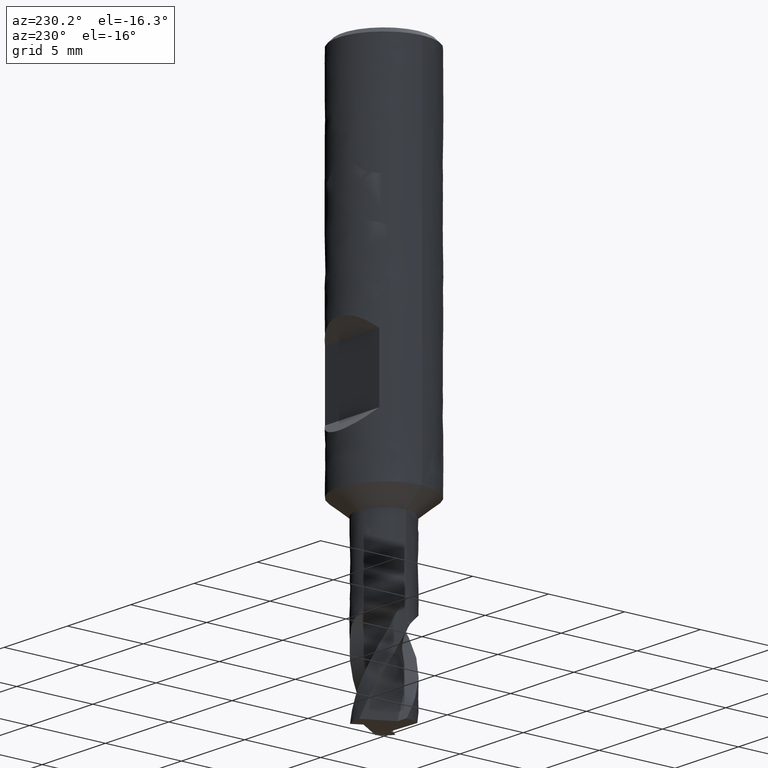
[diagram: clean part render]
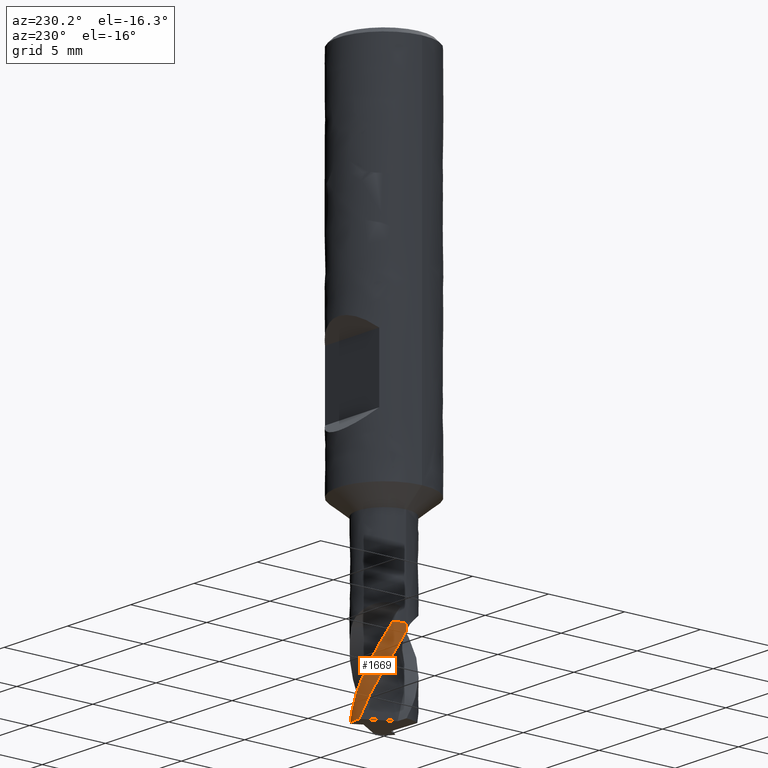
[diagram: same view with one face highlighted and labeled with its STEP entity id]
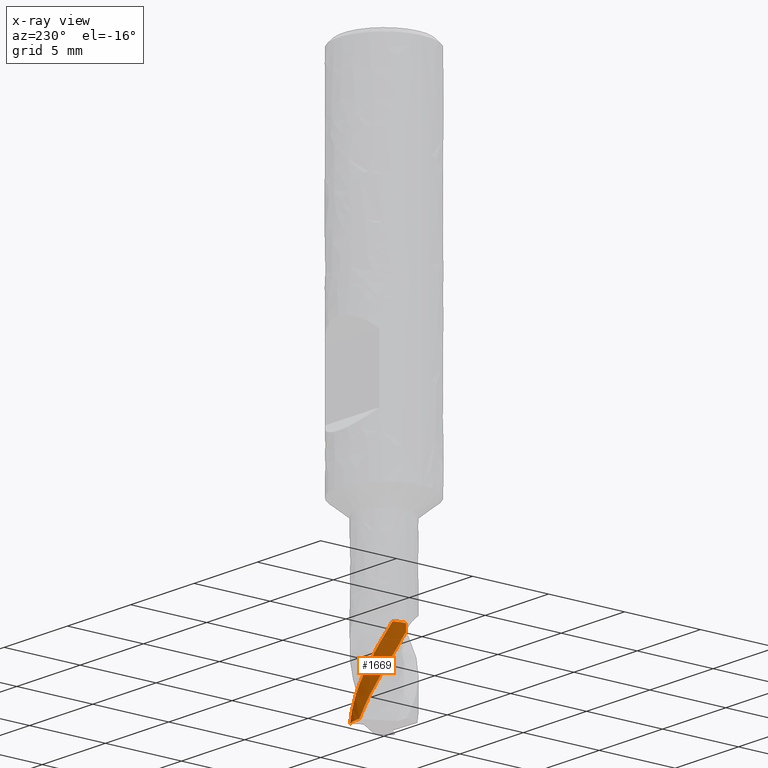
[diagram: x-ray of the same camera — body ghosted, the highlighted face saturated]
A machine part, auxiliary view. The second image highlights one B-rep face of the part: STEP entity #1669.
The next image is the same camera in x-ray: the body ghosted, the highlighted face saturated — about 0% of this face is hidden behind the body in this view.
In plain terms, the highlighted face is a freeform B-spline surface patch.
Its self-contained STEP definition (entity closure, byte-faithful):
#1185 = VERTEX_POINT('', #1186);
#1186 = CARTESIAN_POINT('', (-1.57972499609625, 0.752973397079018, -31.));
#1192 = EDGE_CURVE('', #1193, #1185, #1195, .T.);
#1193 = VERTEX_POINT('', #1194);
#1194 = CARTESIAN_POINT('', (-1.75, 2.00535913360379E-15, -31.));
#1195 = CIRCLE('', #1196, 1.75);
#1196 = AXIS2_PLACEMENT_3D('', #1197, #1198, #1199);
#1197 = CARTESIAN_POINT('', (1.16231383156294E-31, 1.8982025386784E-15, -31.));
#1198 = DIRECTION('', (3.74939945665464E-33, 6.12323399573677E-17, -1.));
#1199 = DIRECTION('', (-1., 6.12323399573677E-17, 0.));
#1504 = VERTEX_POINT('', #1505);
#1505 = CARTESIAN_POINT('', (-1.75, 2.03132023899144E-15, -31.4239770259593));
#1533 = EDGE_CURVE('', #1534, #1504, #1536, .T.);
#1534 = VERTEX_POINT('', #1535);
#1535 = CARTESIAN_POINT('', (-0.13579938749371, 1.74472305147732, -36.));
#1536 = B_SPLINE_CURVE_WITH_KNOTS('', 3, (#1537, #1538, #1539, #1540, #1541, #1542, #1543, #1544, #1545, #1546, #1547, #1548, #1549, #1550, #1551, #1552, #1553, #1554, #1555, #1556, #1557, #1558, #1559, #1560, #1561, #1562, #1563, #1564, #1565, #1566, #1567, #1568, #1569, #1570, #1571, #1572, #1573, #1574, #1575, #1576, #1577, #1578, #1579, #1580, #1581, #1582, #1583, #1584, #1585, #1586, #1587, #1588, #1589, #1590, #1591, #1592, #1593, #1594), .UNSPECIFIED., .F., .U., (4, 3, 3, 3, 3, 3, 3, 3, 3, 3, 3, 3, 3, 3, 3, 3, 3, 3, 3, 4), (0., 0.444485917132373, 0.888742850339028, 1.33277559174829, 1.77658916909205, 2.22018659387222, 2.66356901522196, 3.10673755910325, 3.4021459382814, 3.84495677835667, 4.14018737503664, 4.27147412596438, 4.46835553625788, 4.59964403143588, 4.7309075642457, 4.86214859993675, 4.94967602204588, 5.00804364735204, 5.13931018926137, 5.26894643645169), .UNSPECIFIED.);
#1537 = CARTESIAN_POINT('', (-0.135799387493712, 1.74472305147732, -36.));
#1538 = CARTESIAN_POINT('', (-0.208182108121247, 1.73908918934773, -35.870845164973));
#1539 = CARTESIAN_POINT('', (-0.280325774037532, 1.72893425050256, -35.7416739572751));
#1540 = CARTESIAN_POINT('', (-0.351616540846928, 1.71431205099971, -35.6126166525295));
#1541 = CARTESIAN_POINT('', (-0.422870581094194, 1.69969738435341, -35.4836258336884));
#1542 = CARTESIAN_POINT('', (-0.493334391653768, 1.68060634149178, -35.354625351265));
#1543 = CARTESIAN_POINT('', (-0.562381102560269, 1.65717455190565, -35.2257344631937));
#1544 = CARTESIAN_POINT('', (-0.631392969427059, 1.63375458704218, -35.0969086191942));
#1545 = CARTESIAN_POINT('', (-0.699055259304116, 1.60597587599406, -34.9680711737583));
#1546 = CARTESIAN_POINT('', (-0.764763525052212, 1.57405106357765, -34.8393448719805));
#1547 = CARTESIAN_POINT('', (-0.830439358753491, 1.54214200849403, -34.7106821064626));
#1548 = CARTESIAN_POINT('', (-0.8942241778632, 1.50606112831375, -34.5820069558558));
#1549 = CARTESIAN_POINT('', (-0.95554183034097, 1.46609679437228, -34.4534433231029));
#1550 = CARTESIAN_POINT('', (-1.01682961900102, 1.42615192444379, -34.3249423052861));
#1551 = CARTESIAN_POINT('', (-1.07570973295833, 1.38229005204606, -34.1964280981125));
#1552 = CARTESIAN_POINT('', (-1.13164428073795, 1.33487123793761, -34.0680260744305));
#1553 = CARTESIAN_POINT('', (-1.18755171808145, 1.28747540684739, -33.9396862848238));
#1554 = CARTESIAN_POINT('', (-1.24056950166134, 1.23648065638393, -33.8113335976206));
#1555 = CARTESIAN_POINT('', (-1.29020318995757, 1.1823179473489, -33.683091615854));
#1556 = CARTESIAN_POINT('', (-1.33981293610568, 1.12818136515728, -33.5549114950658));
#1557 = CARTESIAN_POINT('', (-1.38609171719219, 1.07082578677026, -33.4267177773291));
#1558 = CARTESIAN_POINT('', (-1.42860492804149, 1.01073634523331, -33.2986399661025));
#1559 = CARTESIAN_POINT('', (-1.45694348880815, 0.970681777337561, -33.2132655433337));
#1560 = CARTESIAN_POINT('', (-1.48362432496311, 0.929393761390241, -33.1278945096896));
#1561 = CARTESIAN_POINT('', (-1.50852813059148, 0.887041644577182, -33.0425579221939));
#1562 = CARTESIAN_POINT('', (-1.54585840240723, 0.823556727605189, -32.9146402033286));
#1563 = CARTESIAN_POINT('', (-1.57922772355106, 0.757627127784379, -32.7866943574195));
#1564 = CARTESIAN_POINT('', (-1.6083479937175, 0.689722212999941, -32.6589142373303));
#1565 = CARTESIAN_POINT('', (-1.62776304402489, 0.6444486860332, -32.5737207468291));
#1566 = CARTESIAN_POINT('', (-1.64528744808434, 0.598292637279147, -32.4885400582087));
#1567 = CARTESIAN_POINT('', (-1.66080768069556, 0.551559468908565, -32.4033361815365));
#1568 = CARTESIAN_POINT('', (-1.66770940746807, 0.530777592284227, -32.36544668004));
#1569 = CARTESIAN_POINT('', (-1.67421487365111, 0.509885483204432, -32.3275432413459));
#1570 = CARTESIAN_POINT('', (-1.6803267069812, 0.488878469361981, -32.2896422464394));
#1571 = CARTESIAN_POINT('', (-1.68949218908052, 0.457375743594677, -32.2328048178644));
#1572 = CARTESIAN_POINT('', (-1.69777993894808, 0.425594286920368, -32.1759725175508));
#1573 = CARTESIAN_POINT('', (-1.70519350202135, 0.393465526652838, -32.1192300913942));
#1574 = CARTESIAN_POINT('', (-1.7101371660186, 0.372040768565364, -32.0813919444013));
#1575 = CARTESIAN_POINT('', (-1.71469216239242, 0.350458284122381, -32.0435898582454));
#1576 = CARTESIAN_POINT('', (-1.71885100610759, 0.328711452193159, -32.0058411528282));
#1577 = CARTESIAN_POINT('', (-1.72300905908638, 0.306968755069694, -31.9680996247123));
#1578 = CARTESIAN_POINT('', (-1.72676638636305, 0.285075718659257, -31.9303982533948));
#1579 = CARTESIAN_POINT('', (-1.73009651686208, 0.263184426480179, -31.8926604900152));
#1580 = CARTESIAN_POINT('', (-1.73342607661354, 0.241296886226631, -31.8549291944712));
#1581 = CARTESIAN_POINT('', (-1.73632924161598, 0.219408903979693, -31.8171578103492));
#1582 = CARTESIAN_POINT('', (-1.73880243124873, 0.197651473770168, -31.779285675294));
#1583 = CARTESIAN_POINT('', (-1.74045185371634, 0.183140983450342, -31.7540279475285));
#1584 = CARTESIAN_POINT('', (-1.74191059463836, 0.16868729412633, -31.7287242187666));
#1585 = CARTESIAN_POINT('', (-1.74318218265357, 0.154323938775353, -31.7033607642966));
#1586 = CARTESIAN_POINT('', (-1.74403014059666, 0.144745741188087, -31.6864471551521));
#1587 = CARTESIAN_POINT('', (-1.74479481712819, 0.135209737175101, -31.6695052147357));
#1588 = CARTESIAN_POINT('', (-1.74547869090737, 0.125714516219514, -31.652537475592));
#1589 = CARTESIAN_POINT('', (-1.74701669670467, 0.104360129897186, -31.6143776835889));
#1590 = CARTESIAN_POINT('', (-1.74814817049194, 0.0831981967207093, -31.5760917435938));
#1591 = CARTESIAN_POINT('', (-1.74889636568206, 0.0621409857026753, -31.5377436136412));
#1592 = CARTESIAN_POINT('', (-1.74963526849157, 0.0413452995135909, -31.4998717570241));
#1593 = CARTESIAN_POINT('', (-1.75, 0.0206494313834184, -31.4619360176294));
#1594 = CARTESIAN_POINT('', (-1.75, 1.88386874353342E-15, -31.4239770259593));
#1644 = EDGE_CURVE('', #1193, #1504, #1645, .T.);
#1645 = LINE('', #1646, #1647);
#1646 = CARTESIAN_POINT('', (-1.75, 2.00535913360379E-15, -31.));
#1647 = VECTOR('', #1648, 0.423977025959303);
#1648 = DIRECTION('', (0., 2.59611053876537E-17, -0.423977025959303));
#1669 = ADVANCED_FACE('', (#1670), #1769, .T.);
#1670 = FACE_OUTER_BOUND('', #1671, .T.);
#1671 = EDGE_LOOP('', (#1672, #1673, #1760, #1767, #1768));
#1672 = ORIENTED_EDGE('', *, *, #1192, .T.);
#1673 = ORIENTED_EDGE('', *, *, #1674, .T.);
#1674 = EDGE_CURVE('', #1185, #1675, #1677, .T.);
#1675 = VERTEX_POINT('', #1676);
#1676 = CARTESIAN_POINT('', (0.850131221781623, 1.52963293170358, -36.));
#1677 = B_SPLINE_CURVE_WITH_KNOTS('', 3, (#1678, #1679, #1680, #1681, #1682, #1683, #1684, #1685, #1686, #1687, #1688, #1689, #1690, #1691, #1692, #1693, #1694, #1695, #1696, #1697, #1698, #1699, #1700, #1701, #1702, #1703, #1704, #1705, #1706, #1707, #1708, #1709, #1710, #1711, #1712, #1713, #1714, #1715, #1716, #1717, #1718, #1719, #1720, #1721, #1722, #1723, #1724, #1725, #1726, #1727, #1728, #1729, #1730, #1731, #1732, #1733, #1734, #1735, #1736, #1737, #1738, #1739, #1740, #1741, #1742, #1743, #1744, #1745, #1746, #1747, #1748, #1749, #1750, #1751, #1752, #1753, #1754, #1755, #1756, #1757, #1758, #1759), .UNSPECIFIED., .F., .U., (4, 3, 3, 3, 3, 3, 3, 3, 3, 3, 3, 3, 3, 3, 3, 3, 3, 3, 3, 3, 3, 3, 3, 3, 3, 3, 3, 4), (0.957480969290657, 0.963963397430548, 1.05161242662027, 1.13919979259767, 1.2267637772259, 1.31434476345777, 1.35327707089247, 1.48476738828531, 1.61617674605806, 1.74753513611114, 1.87889286186834, 2.01027622215156, 2.14165643430717, 2.33869059407002, 2.53570585460473, 2.83118031009267, 3.02815437802402, 3.32350404478822, 3.76618896974301, 4.20865285611173, 4.65089683054764, 4.84769087697172, 4.90605265892595, 4.94496991299914, 5.38964549570717, 5.83406470055957, 6.27824047919384, 6.71619265526527), .UNSPECIFIED.);
#1678 = CARTESIAN_POINT('', (-1.57972499609625, 0.752973397079018, -31.));
#1679 = CARTESIAN_POINT('', (-1.57925982436353, 0.753949319225145, -31.00187090577));
#1680 = CARTESIAN_POINT('', (-1.57879367294765, 0.754924968322724, -31.0037417210958));
#1681 = CARTESIAN_POINT('', (-1.57832654764479, 0.755900330069835, -31.0056124323483));
#1682 = CARTESIAN_POINT('', (-1.57201053789937, 0.769088214053776, -31.0309063533356));
#1683 = CARTESIAN_POINT('', (-1.56551577174933, 0.782223771283178, -31.0561835787707));
#1684 = CARTESIAN_POINT('', (-1.55887338470358, 0.795244472135965, -31.0814805103163));
#1685 = CARTESIAN_POINT('', (-1.5522356707378, 0.808256012610724, -31.1067596448587));
#1686 = CARTESIAN_POINT('', (-1.54545072821713, 0.821153205675411, -31.1320597144637));
#1687 = CARTESIAN_POINT('', (-1.53853641679145, 0.833909883744358, -31.1573945430122));
#1688 = CARTESIAN_POINT('', (-1.53162395113346, 0.846663156432391, -31.1827226084567));
#1689 = CARTESIAN_POINT('', (-1.52458225514437, 0.85927658528139, -31.2080864967784));
#1690 = CARTESIAN_POINT('', (-1.51740989861998, 0.871760976168419, -31.2334761862399));
#1691 = CARTESIAN_POINT('', (-1.51023614949607, 0.884247791050502, -31.2588708054159));
#1692 = CARTESIAN_POINT('', (-1.50293164436643, 0.8966062815277, -31.2842921764109));
#1693 = CARTESIAN_POINT('', (-1.49547104956114, 0.908881917481313, -31.3097070970791));
#1694 = CARTESIAN_POINT('', (-1.49215459717687, 0.914338796348118, -31.3210047719221));
#1695 = CARTESIAN_POINT('', (-1.48880692368923, 0.91977980154662, -31.3323010082691));
#1696 = CARTESIAN_POINT('', (-1.4854241481715, 0.925210840851416, -31.343591468052));
#1697 = CARTESIAN_POINT('', (-1.47399913239914, 0.943553680744948, -31.3817239661799));
#1698 = CARTESIAN_POINT('', (-1.46217099268517, 0.961784611962242, -31.4197916603377));
#1699 = CARTESIAN_POINT('', (-1.44998568532776, 0.979817081063902, -31.4578367193721));
#1700 = CARTESIAN_POINT('', (-1.4378078805597, 0.997838447432854, -31.4958583537652));
#1701 = CARTESIAN_POINT('', (-1.42527259502575, 1.01566340708237, -31.5338607443633));
#1702 = CARTESIAN_POINT('', (-1.4124164944114, 1.03323745882281, -31.5718684625151));
#1703 = CARTESIAN_POINT('', (-1.3995653800944, 1.05080469438701, -31.6098614391999));
#1704 = CARTESIAN_POINT('', (-1.38639298086082, 1.06812286143891, -31.6478630723801));
#1705 = CARTESIAN_POINT('', (-1.37292186238747, 1.08516614385932, -31.6858799196105));
#1706 = CARTESIAN_POINT('', (-1.35945081203927, 1.10220934008972, -31.723896574585));
#1707 = CARTESIAN_POINT('', (-1.34567590322923, 1.11898518892806, -31.7619275559192));
#1708 = CARTESIAN_POINT('', (-1.33158665063088, 1.13550737199793, -31.7999501310359));
#1709 = CARTESIAN_POINT('', (-1.31749464850782, 1.1520327793801, -31.8379801262772));
#1710 = CARTESIAN_POINT('', (-1.30308668976913, 1.16830561032576, -31.876004962105));
#1711 = CARTESIAN_POINT('', (-1.2883695507602, 1.18431579431922, -31.9140185646562));
#1712 = CARTESIAN_POINT('', (-1.27365276439435, 1.20032559468645, -31.9520312563488));
#1713 = CARTESIAN_POINT('', (-1.25862548083375, 1.21607368777058, -31.9900361229359));
#1714 = CARTESIAN_POINT('', (-1.24331523091238, 1.23153044484548, -32.0280433215504));
#1715 = CARTESIAN_POINT('', (-1.22035406971831, 1.25471132644813, -32.0850436591285));
#1716 = CARTESIAN_POINT('', (-1.19675537447457, 1.27723861193656, -32.1420602552179));
#1717 = CARTESIAN_POINT('', (-1.172565315289, 1.29907296999868, -32.1990840092498));
#1718 = CARTESIAN_POINT('', (-1.1483775763785, 1.32090523374115, -32.2561022936466));
#1719 = CARTESIAN_POINT('', (-1.12359402913384, 1.34204976982141, -32.313138408281));
#1720 = CARTESIAN_POINT('', (-1.0982322471687, 1.36249254356814, -32.3701616686786));
#1721 = CARTESIAN_POINT('', (-1.06019580930082, 1.39315167842442, -32.4556825403634));
#1722 = CARTESIAN_POINT('', (-1.02084138964557, 1.42224234545541, -32.5412040314809));
#1723 = CARTESIAN_POINT('', (-0.980341135919644, 1.44963142116325, -32.6267033918852));
#1724 = CARTESIAN_POINT('', (-0.953342187007212, 1.46788997975893, -32.6837003894651));
#1725 = CARTESIAN_POINT('', (-0.92583183695926, 1.4853946378822, -32.7407039103623));
#1726 = CARTESIAN_POINT('', (-0.897861985357678, 1.50211312997709, -32.7977052731614));
#1727 = CARTESIAN_POINT('', (-0.855923031480508, 1.52718140988258, -32.8831750696915));
#1728 = CARTESIAN_POINT('', (-0.81293307889788, 1.55049238390391, -32.968669027303));
#1729 = CARTESIAN_POINT('', (-0.769048276288923, 1.57196206975138, -33.054141580314));
#1730 = CARTESIAN_POINT('', (-0.703271528468479, 1.60414191397574, -33.1822521386563));
#1731 = CARTESIAN_POINT('', (-0.635430193561998, 1.63220443961805, -33.3104191265647));
#1732 = CARTESIAN_POINT('', (-0.566136579881276, 1.65589533875799, -33.4385267941257));
#1733 = CARTESIAN_POINT('', (-0.496877565441522, 1.67957440871073, -33.5665704957911));
#1734 = CARTESIAN_POINT('', (-0.426099156064597, 1.69891050983008, -33.6946776186841));
#1735 = CARTESIAN_POINT('', (-0.354421641926435, 1.71373431421987, -33.8227217039108));
#1736 = CARTESIAN_POINT('', (-0.282779752708541, 1.72855075093157, -33.9507021490912));
#1737 = CARTESIAN_POINT('', (-0.210172259462064, 1.73887311424181, -34.0787443428907));
#1738 = CARTESIAN_POINT('', (-0.137239618216223, 1.74461035397405, -34.2067247920118));
#1739 = CARTESIAN_POINT('', (-0.104785338640177, 1.7471633669883, -34.2636747831968));
#1740 = CARTESIAN_POINT('', (-0.0722567363264729, 1.74881067029125, -34.3206302628733));
#1741 = CARTESIAN_POINT('', (-0.0397106034945639, 1.74954938997735, -34.3775802687129));
#1742 = CARTESIAN_POINT('', (-0.0300586331107862, 1.74976846671279, -34.3944695185835));
#1743 = CARTESIAN_POINT('', (-0.0204047648234518, 1.74990767020283, -34.4113589088492));
#1744 = CARTESIAN_POINT('', (-0.0107504836657927, 1.74996697886016, -34.4282481547148));
#1745 = CARTESIAN_POINT('', (-0.00431274136036903, 1.75000652751698, -34.4395103720503));
#1746 = CARTESIAN_POINT('', (0.00212524481404228, 1.7500105512419, -34.4507726307636));
#1747 = CARTESIAN_POINT('', (0.0085630341186385, 1.74997904971651, -34.4620348466168));
#1748 = CARTESIAN_POINT('', (0.0821223789015258, 1.74961910759079, -34.590718961577));
#1749 = CARTESIAN_POINT('', (0.155694568765336, 1.74461179352828, -34.7194660906315));
#1750 = CARTESIAN_POINT('', (0.22862436357496, 1.73500170039685, -34.8481501974409));
#1751 = CARTESIAN_POINT('', (0.301512110687045, 1.72539714796782, -34.9767601113856));
#1752 = CARTESIAN_POINT('', (0.373828648189508, 1.71118584866895, -35.1054329311664));
#1753 = CARTESIAN_POINT('', (0.444930621062256, 1.69249423704834, -35.2340428614981));
#1754 = CARTESIAN_POINT('', (0.515993648533523, 1.67381286357287, -35.3625823470141));
#1755 = CARTESIAN_POINT('', (0.585912238839048, 1.65063799481946, -35.4911845444714));
#1756 = CARTESIAN_POINT('', (0.65406473925851, 1.62317568884543, -35.6197240534256));
#1757 = CARTESIAN_POINT('', (0.721262315756686, 1.59609817305147, -35.746462521315));
#1758 = CARTESIAN_POINT('', (0.786805355998495, 1.56482784319691, -35.8732620880733));
#1759 = CARTESIAN_POINT('', (0.850131221781623, 1.52963293170358, -36.));
#1760 = ORIENTED_EDGE('', *, *, #1761, .F.);
#1761 = EDGE_CURVE('', #1534, #1675, #1762, .T.);
#1762 = CIRCLE('', #1763, 1.75);
#1763 = AXIS2_PLACEMENT_3D('', #1764, #1765, #1766);
#1764 = CARTESIAN_POINT('', (1.34978380439567E-31, 2.20436423846524E-15, -36.));
#1765 = DIRECTION('', (3.74939945665464E-33, 6.12323399573677E-17, -1.));
#1766 = DIRECTION('', (-1., 6.12323399573677E-17, 0.));
#1767 = ORIENTED_EDGE('', *, *, #1533, .T.);
#1768 = ORIENTED_EDGE('', *, *, #1644, .F.);
#1769 = (
   BOUNDED_SURFACE ()
   B_SPLINE_SURFACE (2, 1, ((#1770, #1771), (#1772, #1773), (#1774, #1775), (#1776, #1777), (#1778, #1779), (#1780, #1781), (#1782, #1783), (#1784, #1785), (#1786, #1787)), .UNSPECIFIED., .T., .F., .U.)
   B_SPLINE_SURFACE_WITH_KNOTS ((3, 2, 2, 2, 3), (2, 2), (0., 2.74889357189107, 5.49778714378214, 8.24668071567321, 10.9955742875643), (0.545454545454545, 1.), .UNSPECIFIED.)
   GEOMETRIC_REPRESENTATION_ITEM ()
   RATIONAL_B_SPLINE_SURFACE (((1., 1.), (0.707106781186548, 0.707106781186548), (1., 1.), (0.707106781186548, 0.707106781186548), (1., 1.), (0.707106781186548, 0.707106781186548), (1., 1.), (0.707106781186548, 0.707106781186548), (1., 1.)))
   REPRESENTATION_ITEM ('')
   SURFACE ()
);
#1770 = CARTESIAN_POINT('', (-1.75, 2.00535913360379E-15, -31.));
#1771 = CARTESIAN_POINT('', (-1.75, 2.31152083339063E-15, -36.));
#1772 = CARTESIAN_POINT('', (-1.75, 1.75, -31.));
#1773 = CARTESIAN_POINT('', (-1.75, 1.75, -36.));
#1774 = CARTESIAN_POINT('', (1.23259516440783E-31, 1.75, -31.));
#1775 = CARTESIAN_POINT('', (1.35585468084861E-31, 1.75, -36.));
#1776 = CARTESIAN_POINT('', (1.75, 1.75, -31.));
#1777 = CARTESIAN_POINT('', (1.75, 1.75, -36.));
#1778 = CARTESIAN_POINT('', (1.75, 2.00535913360379E-15, -31.));
#1779 = CARTESIAN_POINT('', (1.75, 2.31152083339063E-15, -36.));
#1780 = CARTESIAN_POINT('', (1.75, -1.75, -31.));
#1781 = CARTESIAN_POINT('', (1.75, -1.75, -36.));
#1782 = CARTESIAN_POINT('', (2.14313189850787E-16, -1.75, -31.));
#1783 = CARTESIAN_POINT('', (2.14313189850787E-16, -1.75, -36.));
#1784 = CARTESIAN_POINT('', (-1.75, -1.75, -31.));
#1785 = CARTESIAN_POINT('', (-1.75, -1.75, -36.));
#1786 = CARTESIAN_POINT('', (-1.75, 2.00535913360379E-15, -31.));
#1787 = CARTESIAN_POINT('', (-1.75, 2.31152083339063E-15, -36.));